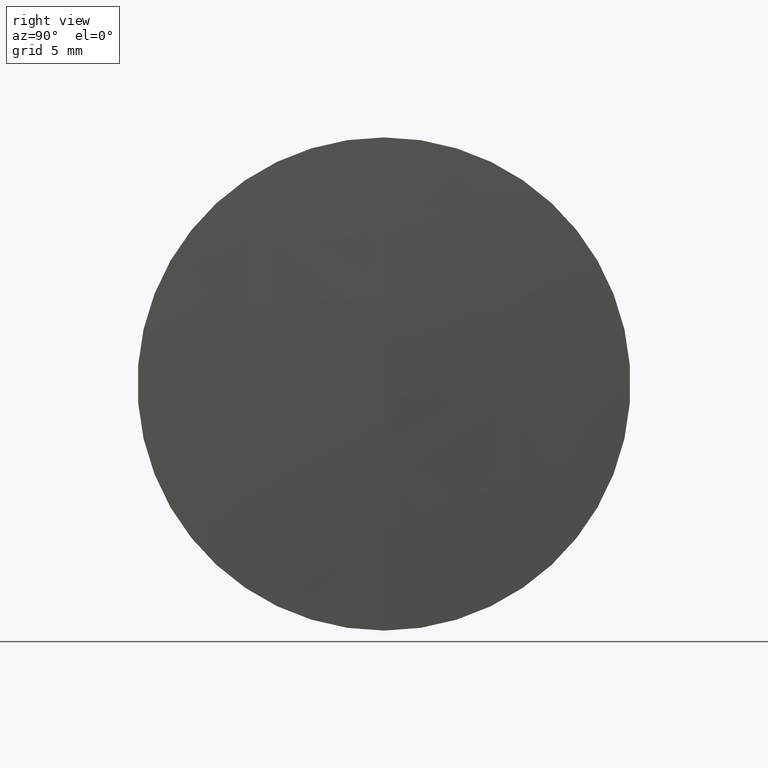
[diagram: clean part render]
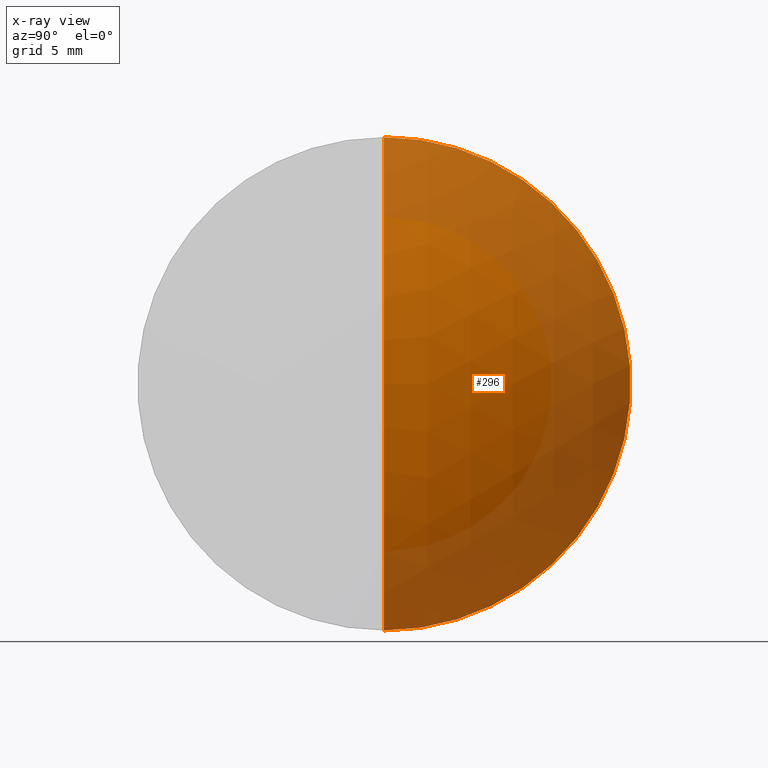
[diagram: x-ray — body ghosted, one internal face saturated and labeled with its STEP entity id]
A machine part, right view, then the same camera in x-ray: the body is ghosted and one INTERNAL B-rep face — a face not visible from any outside direction — is saturated and labeled: STEP entity #296.
In plain terms, the highlighted spherical surface has radius 22.3 mm.
Its self-contained STEP definition (entity closure, byte-faithful):
#2 = AXIS2_PLACEMENT_3D ( 'NONE', #161, #240, #300 ) ;
#10 = AXIS2_PLACEMENT_3D ( 'NONE', #43, #313, #306 ) ;
#12 = SPHERICAL_SURFACE ( 'NONE', #266, 22.29999999999999400 ) ;
#23 = VERTEX_POINT ( 'NONE', #163 ) ;
#24 = VERTEX_POINT ( 'NONE', #341 ) ;
#43 = CARTESIAN_POINT ( 'NONE',  ( 211.0958458084194300, 0.0000000000000000000, -3.185954776904472300E-015 ) ) ;
#59 = CARTESIAN_POINT ( 'NONE',  ( 229.4261485882427700, 1.555301434917138000E-015, -12.69999999999999600 ) ) ;
#76 = CIRCLE ( 'NONE', #10, 22.29999999999999400 ) ;
#98 = AXIS2_PLACEMENT_3D ( 'NONE', #292, #332, #303 ) ;
#121 = DIRECTION ( 'NONE',  ( 0.0000000000000000000, 1.000000000000000000, 0.0000000000000000000 ) ) ;
#140 = FACE_OUTER_BOUND ( 'NONE', #202, .T. ) ;
#158 = CARTESIAN_POINT ( 'NONE',  ( 211.0958458084194300, 0.0000000000000000000, -3.185954776904472300E-015 ) ) ;
#161 = CARTESIAN_POINT ( 'NONE',  ( 229.4261485882427700, 0.0000000000000000000, 0.0000000000000000000 ) ) ;
#163 = CARTESIAN_POINT ( 'NONE',  ( 233.3958458084194100, 0.0000000000000000000, -1.820473595855174100E-015 ) ) ;
#170 = ORIENTED_EDGE ( 'NONE', *, *, #260, .F. ) ;
#172 = ORIENTED_EDGE ( 'NONE', *, *, #267, .F. ) ;
#176 = CIRCLE ( 'NONE', #2, 12.69999999999999600 ) ;
#202 = EDGE_LOOP ( 'NONE', ( #170, #297, #172 ) ) ;
#204 = EDGE_CURVE ( 'NONE', #23, #238, #76, .T. ) ;
#220 = DIRECTION ( 'NONE',  ( 0.0000000000000000000, 0.0000000000000000000, 1.000000000000000000 ) ) ;
#238 = VERTEX_POINT ( 'NONE', #59 ) ;
#240 = DIRECTION ( 'NONE',  ( -1.000000000000000000, -0.0000000000000000000, -0.0000000000000000000 ) ) ;
#260 = EDGE_CURVE ( 'NONE', #23, #24, #268, .T. ) ;
#266 = AXIS2_PLACEMENT_3D ( 'NONE', #158, #121, #220 ) ;
#267 = EDGE_CURVE ( 'NONE', #24, #238, #176, .T. ) ;
#268 = CIRCLE ( 'NONE', #98, 22.29999999999999400 ) ;
#292 = CARTESIAN_POINT ( 'NONE',  ( 211.0958458084194300, 0.0000000000000000000, -3.185954776904472300E-015 ) ) ;
#296 = ADVANCED_FACE ( 'NONE', ( #140 ), #12, .T. ) ;
#297 = ORIENTED_EDGE ( 'NONE', *, *, #204, .T. ) ;
#300 = DIRECTION ( 'NONE',  ( 0.0000000000000000000, 0.0000000000000000000, 1.000000000000000000 ) ) ;
#303 = DIRECTION ( 'NONE',  ( 0.0000000000000000000, 0.0000000000000000000, -1.000000000000000000 ) ) ;
#306 = DIRECTION ( 'NONE',  ( 0.0000000000000000000, -1.224646799147353200E-016, 1.000000000000000000 ) ) ;
#313 = DIRECTION ( 'NONE',  ( -0.0000000000000000000, 1.000000000000000000, 1.224646799147353200E-016 ) ) ;
#332 = DIRECTION ( 'NONE',  ( 0.0000000000000000000, -1.000000000000000000, 0.0000000000000000000 ) ) ;
#341 = CARTESIAN_POINT ( 'NONE',  ( 229.4261485882427700, 0.0000000000000000000, 12.69999999999999600 ) ) ;